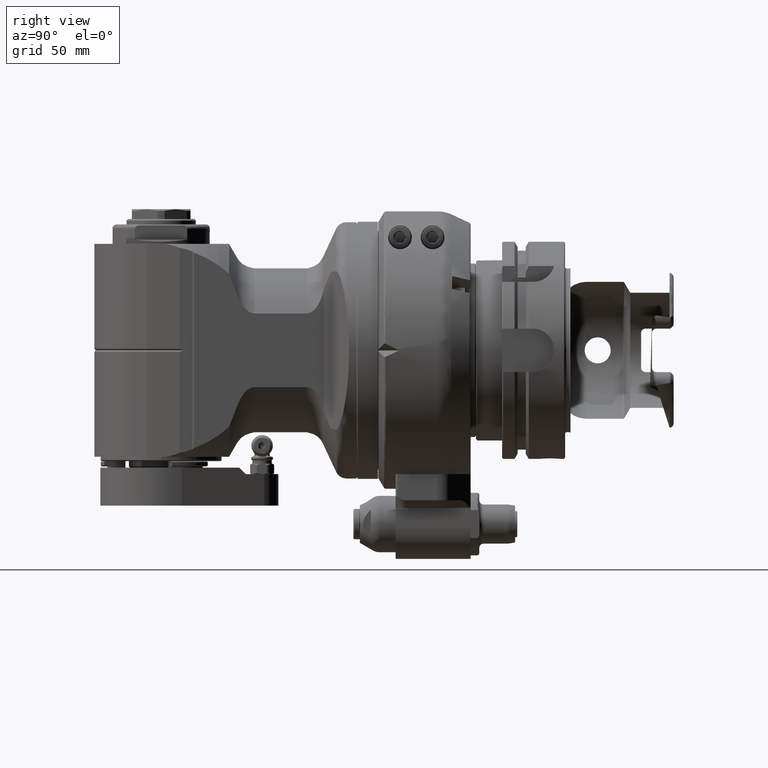
[diagram: clean part render]
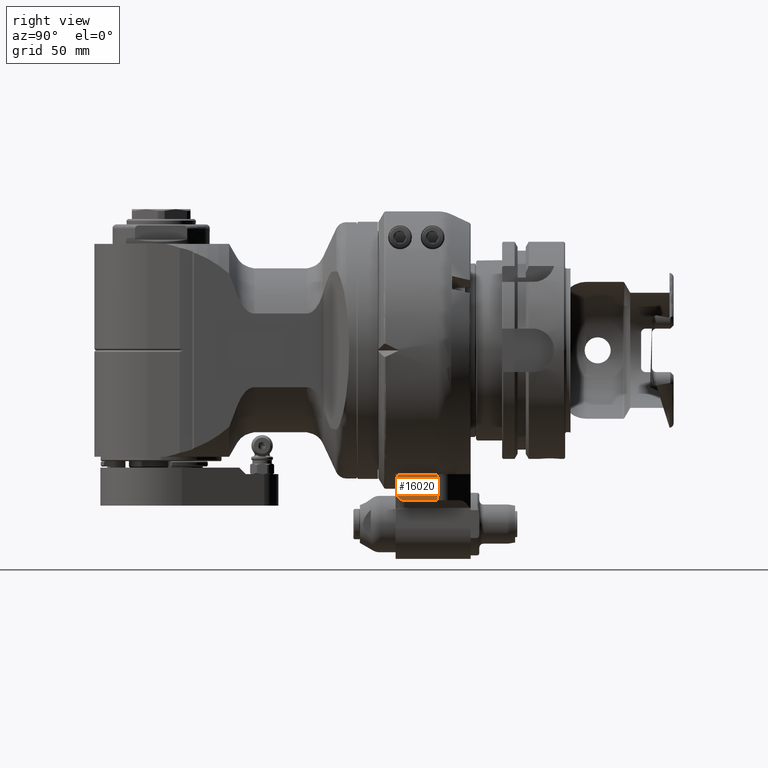
[diagram: same view with one face highlighted and labeled with its STEP entity id]
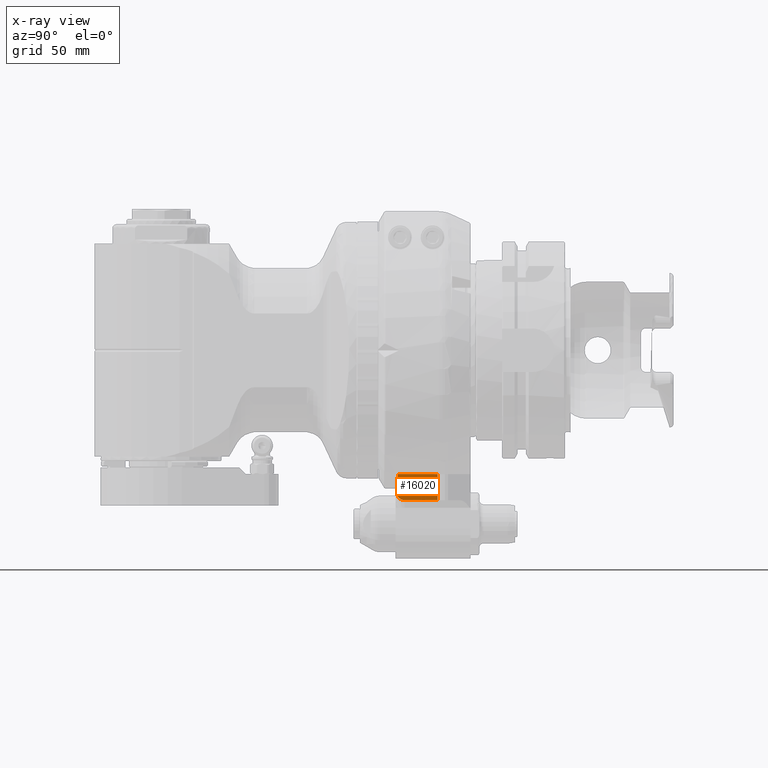
[diagram: x-ray of the same camera — body ghosted, the highlighted face saturated]
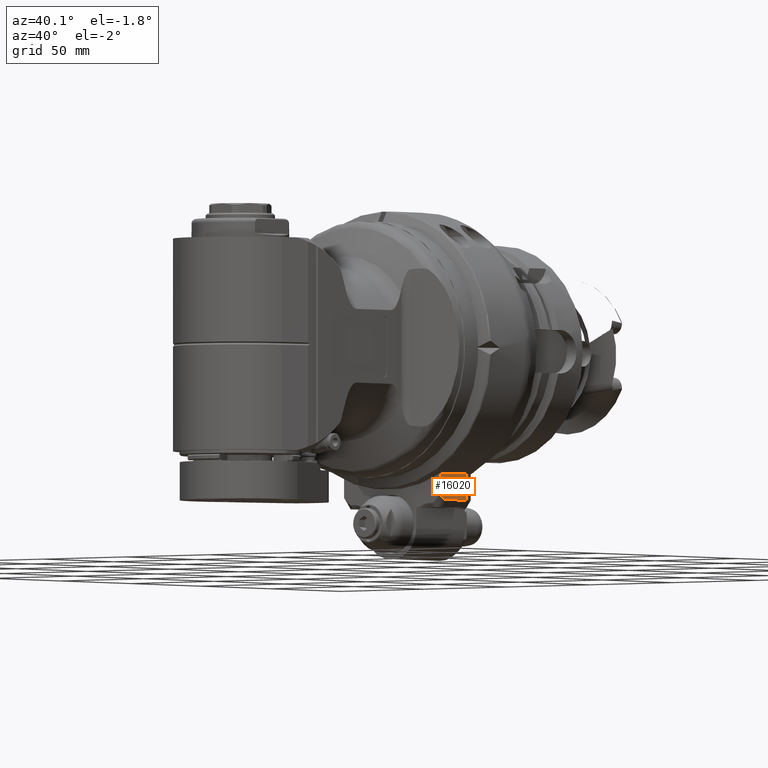
[diagram: same view with one face highlighted and labeled with its STEP entity id]
A machine part, right view. The second image highlights one B-rep face of the part: STEP entity #16020.
The next image is the same camera in x-ray: the body ghosted, the highlighted face saturated — about 0% of this face is hidden behind the body in this view.
A second angle (auxiliary view) of the same face is appended — the face is thin or edge-on in the first view.
In plain terms, the highlighted planar face has unit normal (-1, 0, 0).
Its self-contained STEP definition (entity closure, byte-faithful):
#121=B_SPLINE_CURVE_WITH_KNOTS('',3,(#26015,#26016,#26017,#26018,#26019,
#26020,#26021,#26022,#26023,#26024,#26025,#26026,#26027,#26028,#26029,#26030,
#26031),.UNSPECIFIED.,.F.,.F.,(4,1,1,1,1,1,1,1,1,1,1,1,1,1,4),(0.,0.07142857142857,
0.1428571428571,0.2142857142857,0.2857142857143,0.3571428571429,0.4285714285714,
0.5,0.5714285714286,0.6428571428571,0.7142857142857,0.7857142857143,0.8571428571429,
0.9285714285714,1.),.UNSPECIFIED.);
#912=LINE('',#25953,#2090);
#914=LINE('',#25957,#2092);
#917=LINE('',#26013,#2095);
#918=LINE('',#26032,#2096);
#2090=VECTOR('',#19530,12.03589877858);
#2092=VECTOR('',#19534,18.26953855035);
#2095=VECTOR('',#19541,10.59664825896);
#2096=VECTOR('',#19542,15.26953889725);
#3532=PLANE('',#17201);
#4006=FACE_OUTER_BOUND('',#4949,.T.);
#4949=EDGE_LOOP('',(#11637,#11638,#11639,#11640,#11641));
#6979=VERTEX_POINT('',#25945);
#6981=VERTEX_POINT('',#25951);
#6982=VERTEX_POINT('',#25956);
#6984=VERTEX_POINT('',#26012);
#6985=VERTEX_POINT('',#26014);
#8812=EDGE_CURVE('',#6981,#6979,#912,.T.);
#8814=EDGE_CURVE('',#6981,#6982,#914,.T.);
#8819=EDGE_CURVE('',#6984,#6982,#917,.T.);
#8820=EDGE_CURVE('',#6985,#6984,#121,.T.);
#8821=EDGE_CURVE('',#6985,#6979,#918,.T.);
#11637=ORIENTED_EDGE('',*,*,#8814,.T.);
#11638=ORIENTED_EDGE('',*,*,#8819,.F.);
#11639=ORIENTED_EDGE('',*,*,#8820,.F.);
#11640=ORIENTED_EDGE('',*,*,#8821,.T.);
#11641=ORIENTED_EDGE('',*,*,#8812,.F.);
#16020=ADVANCED_FACE('',(#4006),#3532,.F.);
#17201=AXIS2_PLACEMENT_3D('',#26011,#19539,#19540);
#19530=DIRECTION('',(2.941657496709E-10,-1.143139811099E-8,-1.));
#19534=DIRECTION('',(0.,-1.,0.));
#19539=DIRECTION('center_axis',(-1.,0.,0.));
#19540=DIRECTION('ref_axis',(0.,0.,-1.));
#19541=DIRECTION('',(-5.163122273806E-14,-8.675051223035E-13,1.));
#19542=DIRECTION('',(2.318714747886E-10,1.,4.016097647521E-10));
#25945=CARTESIAN_POINT('',(29.0000000432431,27.2695381819914,-69.0358986870677));
#25951=CARTESIAN_POINT('',(29.,27.26953831958,-57.));
#25953=CARTESIAN_POINT('',(29.,27.26953831958,-57.));
#25956=CARTESIAN_POINT('',(29.,8.999999769231,-57.));
#25957=CARTESIAN_POINT('',(29.,27.26953831958,-57.));
#26011=CARTESIAN_POINT('Origin',(29.,33.99999976923,-90.75));
#26012=CARTESIAN_POINT('',(29.,8.99999976924,-67.59664825896));
#26013=CARTESIAN_POINT('',(29.,8.99999976924,-67.59664825896));
#26014=CARTESIAN_POINT('',(29.,11.99999928475,-69.03589878471));
#26015=CARTESIAN_POINT('Ctrl Pts',(29.,11.99999928475,-69.03589878471));
#26016=CARTESIAN_POINT('Ctrl Pts',(29.,11.93767313703,-69.03589878471));
#26017=CARTESIAN_POINT('Ctrl Pts',(29.,11.81276316187,-69.03185903035));
#26018=CARTESIAN_POINT('Ctrl Pts',(29.,11.624746338,-69.01357574086));
#26019=CARTESIAN_POINT('Ctrl Pts',(29.,11.4357140803,-68.98296553348));
#26020=CARTESIAN_POINT('Ctrl Pts',(29.,11.24446560343,-68.9396617397));
#26021=CARTESIAN_POINT('Ctrl Pts',(29.,11.0499466181,-68.88305659688));
#26022=CARTESIAN_POINT('Ctrl Pts',(29.,10.85211638417,-68.81274112989));
#26023=CARTESIAN_POINT('Ctrl Pts',(29.,10.64995565385,-68.72794846052));
#26024=CARTESIAN_POINT('Ctrl Pts',(29.,10.44189849946,-68.62739323422));
#26025=CARTESIAN_POINT('Ctrl Pts',(29.,10.22757645123,-68.51016839064));
#26026=CARTESIAN_POINT('Ctrl Pts',(29.,10.00565393519,-68.37478367376));
#26027=CARTESIAN_POINT('Ctrl Pts',(29.,9.77372662133,-68.21871508901));
#26028=CARTESIAN_POINT('Ctrl Pts',(29.,9.530491352945,-68.03978737974));
#26029=CARTESIAN_POINT('Ctrl Pts',(29.,9.274086715876,-67.83521848248));
#26030=CARTESIAN_POINT('Ctrl Pts',(29.,9.092874273666,-67.67941176807));
#26031=CARTESIAN_POINT('Ctrl Pts',(29.,8.99999976924,-67.59664825896));
#26032=CARTESIAN_POINT('',(29.,11.99999928475,-69.03589878471));